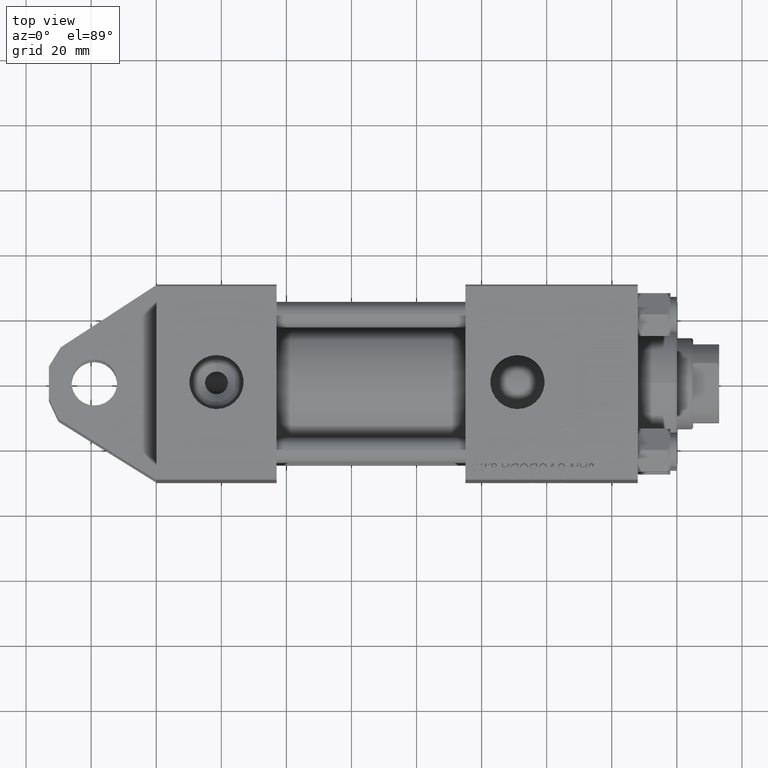
[diagram: clean part render]
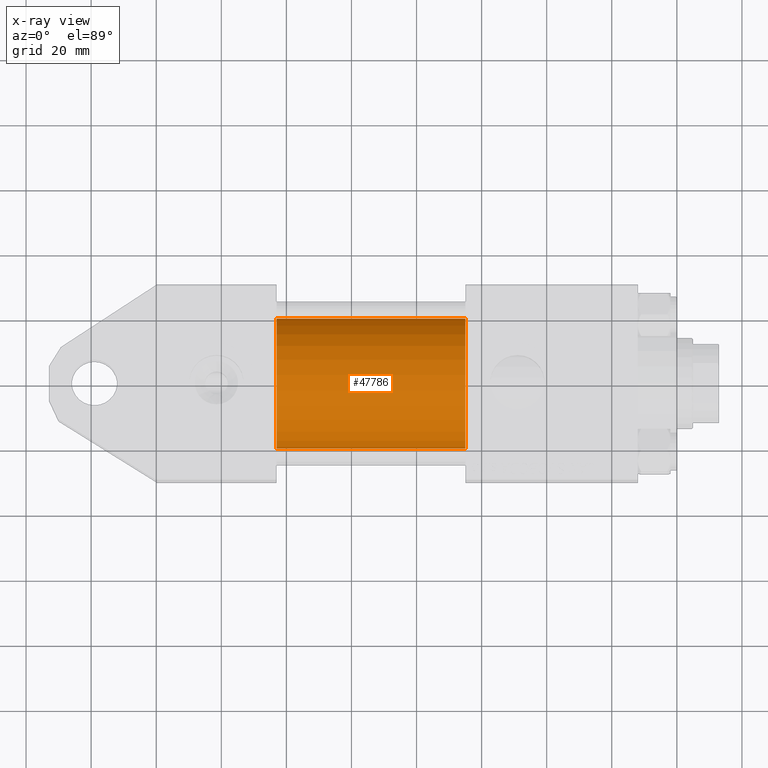
[diagram: x-ray — body ghosted, one internal face saturated and labeled with its STEP entity id]
A machine part, top view, then the same camera in x-ray: the body is ghosted and one INTERNAL B-rep face — a face not visible from any outside direction — is saturated and labeled: STEP entity #47786.
In plain terms, the highlighted cylindrical surface (partial cylindrical patch) has radius 20 mm, axis along (-1, -0, 0).
Its self-contained STEP definition (entity closure, byte-faithful):
#814 = CYLINDRICAL_SURFACE ( 'NONE', #11825, 20.00000000000000000 ) ;
#1343 = CARTESIAN_POINT ( 'NONE',  ( 95.00000000000000000, -3.469446951953614189E-15, 0.000000000000000000 ) ) ;
#2673 = AXIS2_PLACEMENT_3D ( 'NONE', #38139, #34773, #27212 ) ;
#4173 = LINE ( 'NONE', #40078, #17221 ) ;
#4576 = CARTESIAN_POINT ( 'NONE',  ( 37.00000000000000000, -1.020153353658908268E-15, -20.00000000000000000 ) ) ;
#4653 = CARTESIAN_POINT ( 'NONE',  ( 95.00000000000000000, -1.020153353658908268E-15, -20.00000000000000000 ) ) ;
#7059 = CIRCLE ( 'NONE', #12851, 20.00000000000000000 ) ;
#7142 = EDGE_CURVE ( 'NONE', #17367, #33249, #7059, .T. ) ;
#10461 = VERTEX_POINT ( 'NONE', #4576 ) ;
#11825 = AXIS2_PLACEMENT_3D ( 'NONE', #40638, #24003, #16175 ) ;
#12851 = AXIS2_PLACEMENT_3D ( 'NONE', #1343, #45056, #33622 ) ;
#15338 = VECTOR ( 'NONE', #23013, 1000.000000000000000 ) ;
#15760 = VERTEX_POINT ( 'NONE', #33908 ) ;
#16175 = DIRECTION ( 'NONE',  ( 0.000000000000000000, 0.000000000000000000, 1.000000000000000000 ) ) ;
#16349 = EDGE_LOOP ( 'NONE', ( #21540, #32315, #38764, #46986 ) ) ;
#17221 = VECTOR ( 'NONE', #39308, 1000.000000000000000 ) ;
#17367 = VERTEX_POINT ( 'NONE', #51203 ) ;
#18842 = CARTESIAN_POINT ( 'NONE',  ( 95.00000000000000000, -3.469446951953614189E-15, 20.00000000000000000 ) ) ;
#21540 = ORIENTED_EDGE ( 'NONE', *, *, #7142, .T. ) ;
#23013 = DIRECTION ( 'NONE',  ( -1.000000000000000000, -0.000000000000000000, -0.000000000000000000 ) ) ;
#24003 = DIRECTION ( 'NONE',  ( -1.000000000000000000, -0.000000000000000000, -0.000000000000000000 ) ) ;
#26413 = LINE ( 'NONE', #18842, #15338 ) ;
#27212 = DIRECTION ( 'NONE',  ( 0.000000000000000000, 0.000000000000000000, -1.000000000000000000 ) ) ;
#32315 = ORIENTED_EDGE ( 'NONE', *, *, #35394, .T. ) ;
#33249 = VERTEX_POINT ( 'NONE', #4653 ) ;
#33622 = DIRECTION ( 'NONE',  ( 0.000000000000000000, 0.000000000000000000, -1.000000000000000000 ) ) ;
#33908 = CARTESIAN_POINT ( 'NONE',  ( 37.00000000000000000, -3.469446951953614189E-15, 20.00000000000000000 ) ) ;
#34773 = DIRECTION ( 'NONE',  ( 1.000000000000000000, 0.000000000000000000, 0.000000000000000000 ) ) ;
#35394 = EDGE_CURVE ( 'NONE', #33249, #10461, #4173, .T. ) ;
#38139 = CARTESIAN_POINT ( 'NONE',  ( 37.00000000000000000, -3.469446951953614189E-15, 0.000000000000000000 ) ) ;
#38764 = ORIENTED_EDGE ( 'NONE', *, *, #48501, .F. ) ;
#39308 = DIRECTION ( 'NONE',  ( -1.000000000000000000, -0.000000000000000000, -0.000000000000000000 ) ) ;
#40078 = CARTESIAN_POINT ( 'NONE',  ( 95.00000000000000000, -1.020153353658908268E-15, -20.00000000000000000 ) ) ;
#40638 = CARTESIAN_POINT ( 'NONE',  ( 95.00000000000000000, -3.469446951953614189E-15, 0.000000000000000000 ) ) ;
#40903 = CIRCLE ( 'NONE', #2673, 20.00000000000000000 ) ;
#45056 = DIRECTION ( 'NONE',  ( 1.000000000000000000, 0.000000000000000000, 0.000000000000000000 ) ) ;
#46986 = ORIENTED_EDGE ( 'NONE', *, *, #50586, .F. ) ;
#47786 = ADVANCED_FACE ( 'NONE', ( #48426 ), #814, .F. ) ;
#48426 = FACE_OUTER_BOUND ( 'NONE', #16349, .T. ) ;
#48501 = EDGE_CURVE ( 'NONE', #15760, #10461, #40903, .T. ) ;
#50586 = EDGE_CURVE ( 'NONE', #17367, #15760, #26413, .T. ) ;
#51203 = CARTESIAN_POINT ( 'NONE',  ( 95.00000000000000000, -3.469446951953614189E-15, 20.00000000000000000 ) ) ;